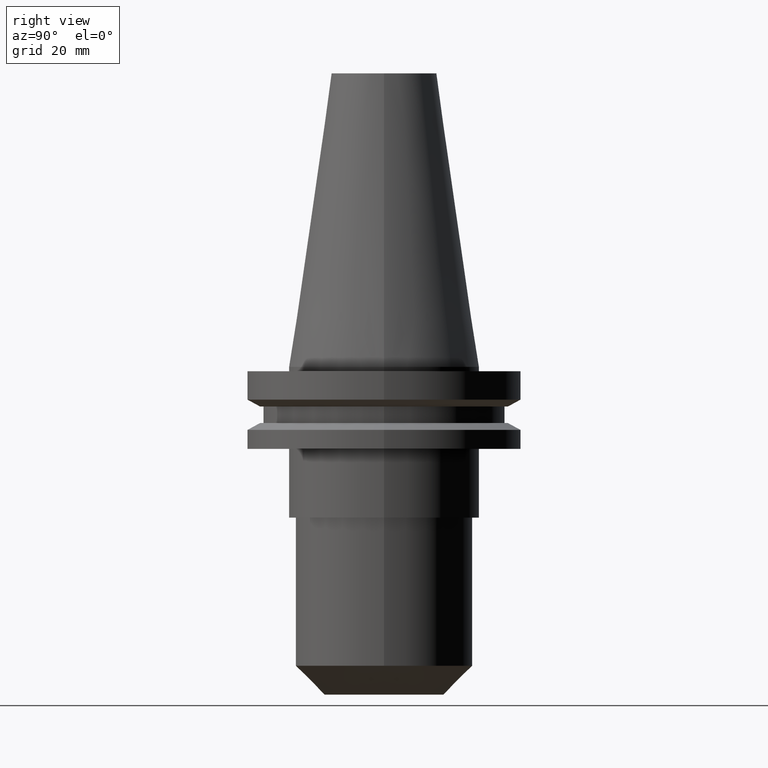
[diagram: clean part render]
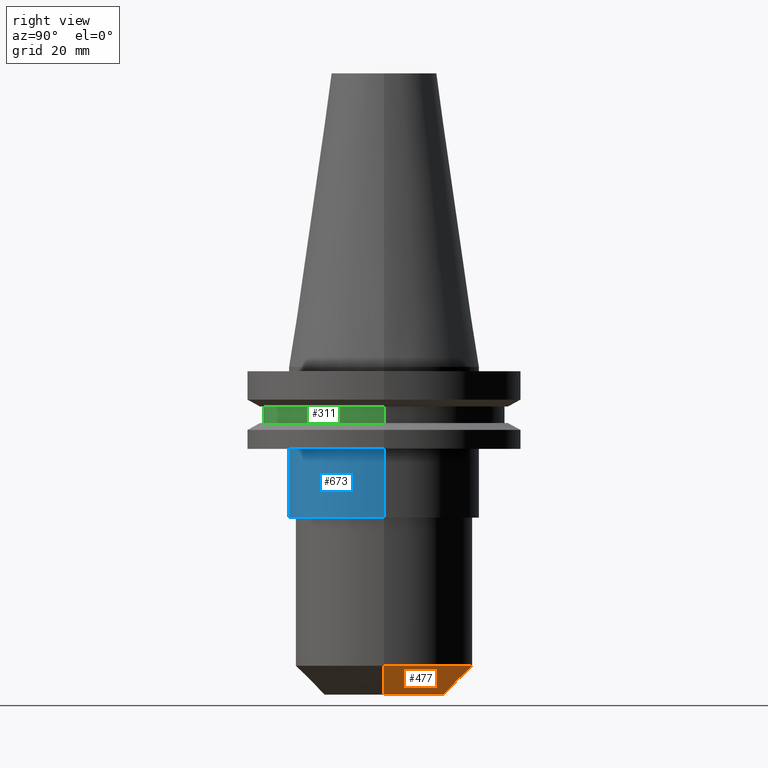
[diagram: same view with three faces highlighted in distinct colors, each labeled with its STEP entity id]
A machine part, right view with three faces highlighted in distinct colors.
Their STEP definitions:

[orange] entity #477 — the highlighted conical surface has half-angle 45 deg.
#45 = VERTEX_POINT ( 'NONE', #121 ) ;
#57 = FACE_OUTER_BOUND ( 'NONE', #176, .T. ) ;
#69 = LINE ( 'NONE', #395, #412 ) ;
#96 = AXIS2_PLACEMENT_3D ( 'NONE', #392, #258, #669 ) ;
#121 = CARTESIAN_POINT ( 'NONE',  ( -13.93749999999997691, 2.117108154025985294E-15, -76.20000000000001705 ) ) ;
#176 = EDGE_LOOP ( 'NONE', ( #415, #561, #523, #568 ) ) ;
#199 = CARTESIAN_POINT ( 'NONE',  ( 0.000000000000000000, 0.000000000000000000, -76.20000000000001705 ) ) ;
#204 = CARTESIAN_POINT ( 'NONE',  ( 13.93749999999997691, 0.000000000000000000, -76.20000000000001705 ) ) ;
#254 = CARTESIAN_POINT ( 'NONE',  ( 13.93749999999997691, 0.000000000000000000, -76.20000000000001705 ) ) ;
#258 = DIRECTION ( 'NONE',  ( -0.000000000000000000, -0.000000000000000000, 1.000000000000000000 ) ) ;
#274 = VERTEX_POINT ( 'NONE', #830 ) ;
#328 = CIRCLE ( 'NONE', #812, 20.63749999999999929 ) ;
#354 = AXIS2_PLACEMENT_3D ( 'NONE', #199, #846, #464 ) ;
#357 = EDGE_CURVE ( 'NONE', #462, #274, #328, .T. ) ;
#392 = CARTESIAN_POINT ( 'NONE',  ( 0.000000000000000000, 0.000000000000000000, -76.20000000000001705 ) ) ;
#395 = CARTESIAN_POINT ( 'NONE',  ( -13.93749999999997691, 1.706851476311620733E-15, -76.20000000000001705 ) ) ;
#396 = CIRCLE ( 'NONE', #354, 13.93749999999997691 ) ;
#404 = EDGE_CURVE ( 'NONE', #511, #462, #783, .T. ) ;
#412 = VECTOR ( 'NONE', #739, 1000.000000000000000 ) ;
#415 = ORIENTED_EDGE ( 'NONE', *, *, #460, .T. ) ;
#436 = DIRECTION ( 'NONE',  ( -0.000000000000000000, -0.000000000000000000, 1.000000000000000000 ) ) ;
#460 = EDGE_CURVE ( 'NONE', #511, #45, #396, .T. ) ;
#462 = VERTEX_POINT ( 'NONE', #516 ) ;
#464 = DIRECTION ( 'NONE',  ( 1.000000000000000000, 0.000000000000000000, 0.000000000000000000 ) ) ;
#477 = ADVANCED_FACE ( 'NONE', ( #57 ), #657, .T. ) ;
#511 = VERTEX_POINT ( 'NONE', #254 ) ;
#516 = CARTESIAN_POINT ( 'NONE',  ( 20.63749999999999929, 0.000000000000000000, -69.50000000000000000 ) ) ;
#519 = VECTOR ( 'NONE', #652, 1000.000000000000000 ) ;
#523 = ORIENTED_EDGE ( 'NONE', *, *, #357, .F. ) ;
#561 = ORIENTED_EDGE ( 'NONE', *, *, #850, .T. ) ;
#568 = ORIENTED_EDGE ( 'NONE', *, *, #404, .F. ) ;
#572 = CARTESIAN_POINT ( 'NONE',  ( 0.000000000000000000, 0.000000000000000000, -69.50000000000000000 ) ) ;
#652 = DIRECTION ( 'NONE',  ( 0.7071067811865481278, 0.000000000000000000, 0.7071067811865470176 ) ) ;
#657 = CONICAL_SURFACE ( 'NONE', #96, 13.93749999999997691, 0.7853981633974490562 ) ;
#669 = DIRECTION ( 'NONE',  ( 1.000000000000000000, 0.000000000000000000, 0.000000000000000000 ) ) ;
#692 = DIRECTION ( 'NONE',  ( 1.000000000000000000, 0.000000000000000000, 0.000000000000000000 ) ) ;
#739 = DIRECTION ( 'NONE',  ( -0.7071067811865481278, 8.659560562354940254E-17, 0.7071067811865470176 ) ) ;
#783 = LINE ( 'NONE', #204, #519 ) ;
#812 = AXIS2_PLACEMENT_3D ( 'NONE', #572, #436, #692 ) ;
#830 = CARTESIAN_POINT ( 'NONE',  ( -20.63749999999999929, 2.527364831740350249E-15, -69.50000000000000000 ) ) ;
#846 = DIRECTION ( 'NONE',  ( -0.000000000000000000, -0.000000000000000000, 1.000000000000000000 ) ) ;
#850 = EDGE_CURVE ( 'NONE', #45, #274, #69, .T. ) ;

[blue] entity #673 — the highlighted cylindrical surface (partial cylindrical patch) has radius 22.225 mm, axis along (-0, -0, 1).
#35 = VERTEX_POINT ( 'NONE', #68 ) ;
#54 = CIRCLE ( 'NONE', #546, 22.22500000000000142 ) ;
#68 = CARTESIAN_POINT ( 'NONE',  ( 22.22499999999999787, 0.000000000000000000, -35.04999999999999716 ) ) ;
#77 = DIRECTION ( 'NONE',  ( 1.000000000000000000, 0.000000000000000000, 0.000000000000000000 ) ) ;
#78 = EDGE_CURVE ( 'NONE', #105, #500, #54, .T. ) ;
#100 = DIRECTION ( 'NONE',  ( -0.000000000000000000, -0.000000000000000000, 1.000000000000000000 ) ) ;
#105 = VERTEX_POINT ( 'NONE', #341 ) ;
#118 = DIRECTION ( 'NONE',  ( -0.000000000000000000, -0.000000000000000000, 1.000000000000000000 ) ) ;
#162 = DIRECTION ( 'NONE',  ( 1.000000000000000000, 0.000000000000000000, 0.000000000000000000 ) ) ;
#175 = EDGE_LOOP ( 'NONE', ( #644, #618, #815, #501 ) ) ;
#213 = CYLINDRICAL_SURFACE ( 'NONE', #780, 22.22500000000000142 ) ;
#235 = DIRECTION ( 'NONE',  ( -0.000000000000000000, -0.000000000000000000, 1.000000000000000000 ) ) ;
#239 = LINE ( 'NONE', #245, #827 ) ;
#245 = CARTESIAN_POINT ( 'NONE',  ( -22.22500000000000142, 2.721777511104992849E-15, 68.25000000000000000 ) ) ;
#300 = CARTESIAN_POINT ( 'NONE',  ( 0.000000000000000000, 0.000000000000000000, 68.25000000000000000 ) ) ;
#330 = CARTESIAN_POINT ( 'NONE',  ( 22.22500000000000142, 0.000000000000000000, -19.04999999999999716 ) ) ;
#331 = EDGE_CURVE ( 'NONE', #579, #35, #761, .T. ) ;
#341 = CARTESIAN_POINT ( 'NONE',  ( -22.22500000000000142, 2.721777511104992849E-15, -19.04999999999999716 ) ) ;
#343 = EDGE_CURVE ( 'NONE', #579, #105, #239, .T. ) ;
#363 = AXIS2_PLACEMENT_3D ( 'NONE', #430, #100, #162 ) ;
#430 = CARTESIAN_POINT ( 'NONE',  ( 0.000000000000000000, 0.000000000000000000, -35.04999999999999716 ) ) ;
#461 = LINE ( 'NONE', #720, #467 ) ;
#467 = VECTOR ( 'NONE', #660, 1000.000000000000000 ) ;
#475 = FACE_OUTER_BOUND ( 'NONE', #175, .T. ) ;
#500 = VERTEX_POINT ( 'NONE', #330 ) ;
#501 = ORIENTED_EDGE ( 'NONE', *, *, #78, .F. ) ;
#502 = DIRECTION ( 'NONE',  ( -0.000000000000000000, -0.000000000000000000, 1.000000000000000000 ) ) ;
#532 = EDGE_CURVE ( 'NONE', #35, #500, #461, .T. ) ;
#546 = AXIS2_PLACEMENT_3D ( 'NONE', #725, #118, #653 ) ;
#579 = VERTEX_POINT ( 'NONE', #821 ) ;
#618 = ORIENTED_EDGE ( 'NONE', *, *, #331, .T. ) ;
#644 = ORIENTED_EDGE ( 'NONE', *, *, #343, .F. ) ;
#653 = DIRECTION ( 'NONE',  ( 1.000000000000000000, 0.000000000000000000, 0.000000000000000000 ) ) ;
#660 = DIRECTION ( 'NONE',  ( -0.000000000000000000, -0.000000000000000000, 1.000000000000000000 ) ) ;
#673 = ADVANCED_FACE ( 'NONE', ( #475 ), #213, .T. ) ;
#720 = CARTESIAN_POINT ( 'NONE',  ( 22.22500000000000142, 0.000000000000000000, 68.25000000000000000 ) ) ;
#725 = CARTESIAN_POINT ( 'NONE',  ( 0.000000000000000000, 0.000000000000000000, -19.04999999999999716 ) ) ;
#761 = CIRCLE ( 'NONE', #363, 22.22499999999999787 ) ;
#780 = AXIS2_PLACEMENT_3D ( 'NONE', #300, #502, #77 ) ;
#815 = ORIENTED_EDGE ( 'NONE', *, *, #532, .T. ) ;
#821 = CARTESIAN_POINT ( 'NONE',  ( -22.22499999999999787, 2.721777511104992454E-15, -35.04999999999999716 ) ) ;
#827 = VECTOR ( 'NONE', #235, 1000.000000000000000 ) ;

[green] entity #311 — the highlighted cylindrical surface (partial cylindrical patch) has radius 28.18 mm, axis along (-0, -0, 1).
#32 = VERTEX_POINT ( 'NONE', #584 ) ;
#73 = EDGE_CURVE ( 'NONE', #420, #534, #649, .T. ) ;
#86 = VECTOR ( 'NONE', #605, 1000.000000000000000 ) ;
#89 = VERTEX_POINT ( 'NONE', #665 ) ;
#127 = EDGE_LOOP ( 'NONE', ( #269, #518, #847, #816 ) ) ;
#146 = DIRECTION ( 'NONE',  ( 1.000000000000000000, 0.000000000000000000, 0.000000000000000000 ) ) ;
#195 = DIRECTION ( 'NONE',  ( -0.000000000000000000, -0.000000000000000000, 1.000000000000000000 ) ) ;
#266 = CARTESIAN_POINT ( 'NONE',  ( 0.000000000000000000, 0.000000000000000000, -13.05499999999999794 ) ) ;
#269 = ORIENTED_EDGE ( 'NONE', *, *, #631, .F. ) ;
#298 = DIRECTION ( 'NONE',  ( -0.000000000000000000, -0.000000000000000000, 1.000000000000000000 ) ) ;
#307 = CYLINDRICAL_SURFACE ( 'NONE', #803, 28.17999999999999972 ) ;
#311 = ADVANCED_FACE ( 'NONE', ( #448 ), #307, .T. ) ;
#313 = CIRCLE ( 'NONE', #612, 28.17999999999999972 ) ;
#342 = VECTOR ( 'NONE', #195, 1000.000000000000000 ) ;
#420 = VERTEX_POINT ( 'NONE', #664 ) ;
#448 = FACE_OUTER_BOUND ( 'NONE', #127, .T. ) ;
#482 = EDGE_CURVE ( 'NONE', #89, #420, #778, .T. ) ;
#518 = ORIENTED_EDGE ( 'NONE', *, *, #482, .T. ) ;
#534 = VERTEX_POINT ( 'NONE', #655 ) ;
#566 = DIRECTION ( 'NONE',  ( -0.000000000000000000, -0.000000000000000000, 1.000000000000000000 ) ) ;
#582 = CARTESIAN_POINT ( 'NONE',  ( 0.000000000000000000, 0.000000000000000000, 68.25000000000000000 ) ) ;
#584 = CARTESIAN_POINT ( 'NONE',  ( -28.17999999999999972, 3.451054679997241634E-15, -9.204999999999991189 ) ) ;
#605 = DIRECTION ( 'NONE',  ( -0.000000000000000000, -0.000000000000000000, 1.000000000000000000 ) ) ;
#609 = LINE ( 'NONE', #623, #86 ) ;
#612 = AXIS2_PLACEMENT_3D ( 'NONE', #759, #566, #146 ) ;
#623 = CARTESIAN_POINT ( 'NONE',  ( -28.17999999999999972, 3.451054679997241634E-15, 68.25000000000000000 ) ) ;
#631 = EDGE_CURVE ( 'NONE', #89, #32, #609, .T. ) ;
#641 = DIRECTION ( 'NONE',  ( 1.000000000000000000, 0.000000000000000000, 0.000000000000000000 ) ) ;
#649 = LINE ( 'NONE', #788, #342 ) ;
#655 = CARTESIAN_POINT ( 'NONE',  ( 28.17999999999999972, 0.000000000000000000, -9.204999999999991189 ) ) ;
#664 = CARTESIAN_POINT ( 'NONE',  ( 28.17999999999999972, 0.000000000000000000, -13.05499999999999794 ) ) ;
#665 = CARTESIAN_POINT ( 'NONE',  ( -28.17999999999999972, 3.451054679997241634E-15, -13.05499999999999794 ) ) ;
#679 = EDGE_CURVE ( 'NONE', #32, #534, #313, .T. ) ;
#682 = AXIS2_PLACEMENT_3D ( 'NONE', #266, #852, #729 ) ;
#729 = DIRECTION ( 'NONE',  ( 1.000000000000000000, 0.000000000000000000, 0.000000000000000000 ) ) ;
#759 = CARTESIAN_POINT ( 'NONE',  ( 0.000000000000000000, 0.000000000000000000, -9.204999999999991189 ) ) ;
#778 = CIRCLE ( 'NONE', #682, 28.17999999999999972 ) ;
#788 = CARTESIAN_POINT ( 'NONE',  ( 28.17999999999999972, 0.000000000000000000, 68.25000000000000000 ) ) ;
#803 = AXIS2_PLACEMENT_3D ( 'NONE', #582, #298, #641 ) ;
#816 = ORIENTED_EDGE ( 'NONE', *, *, #679, .F. ) ;
#847 = ORIENTED_EDGE ( 'NONE', *, *, #73, .T. ) ;
#852 = DIRECTION ( 'NONE',  ( -0.000000000000000000, -0.000000000000000000, 1.000000000000000000 ) ) ;